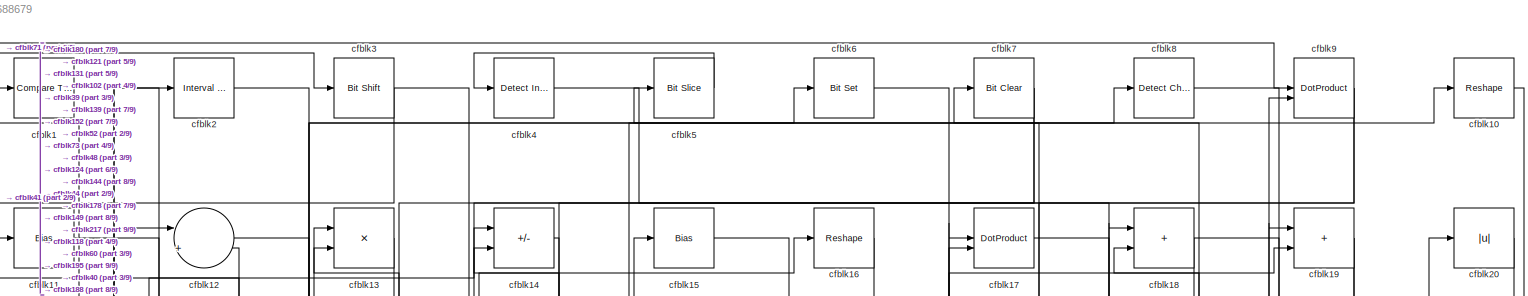
[diagram: root canvas - part 1/9, full width, top band]
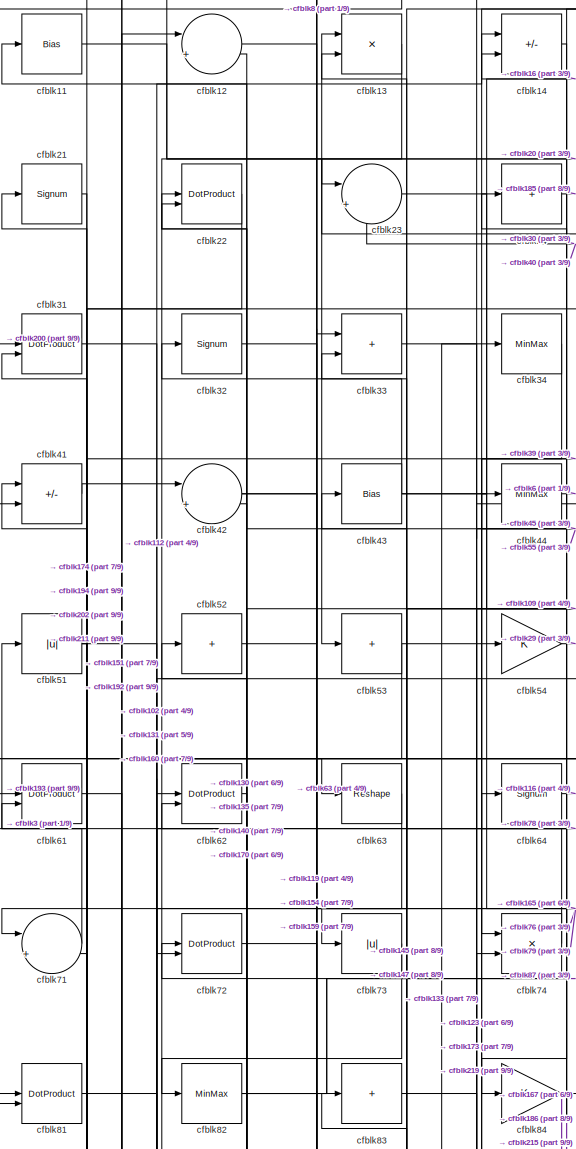
[diagram: root canvas - part 2/9, top left region]
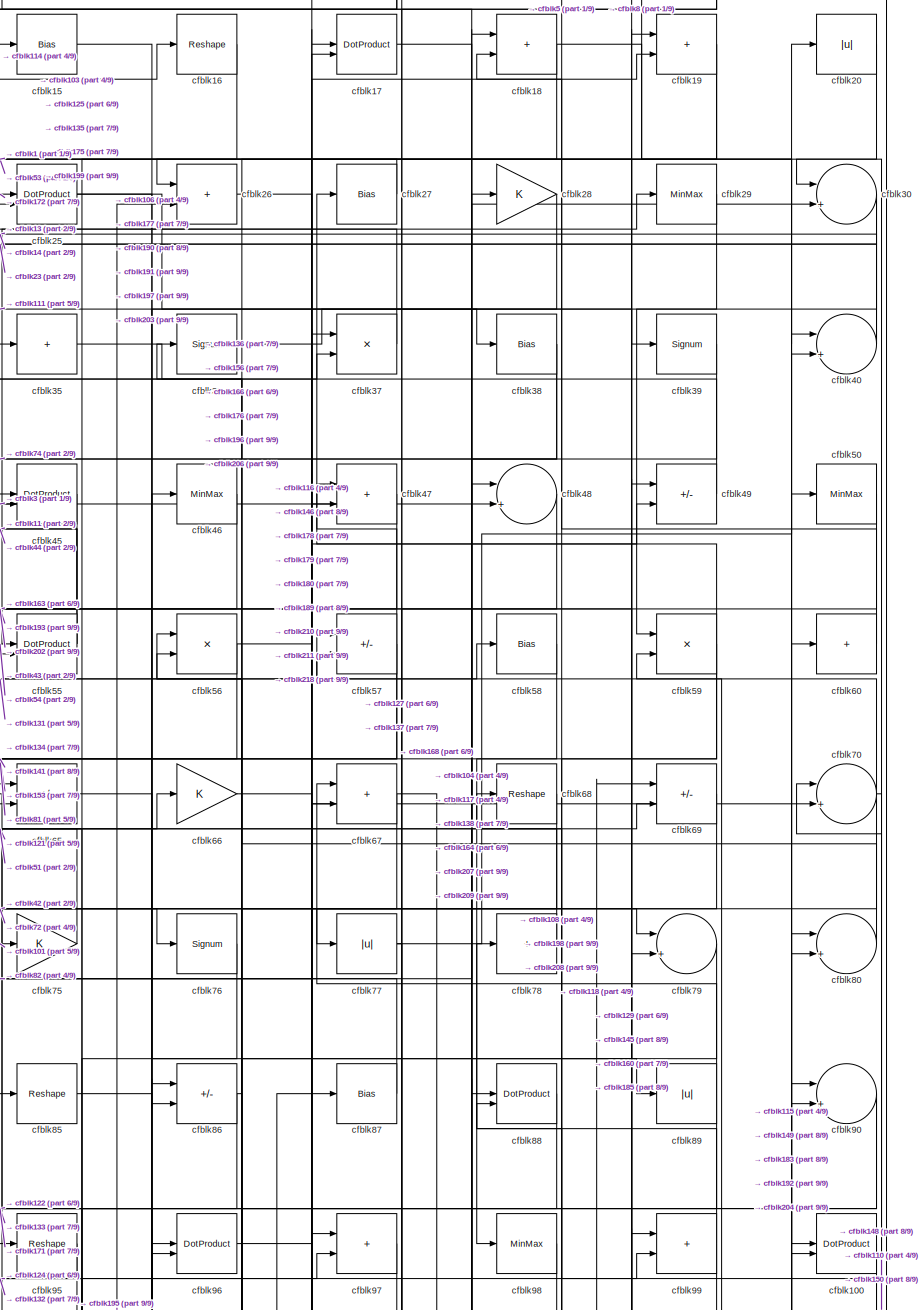
[diagram: root canvas - part 3/9, top right region]
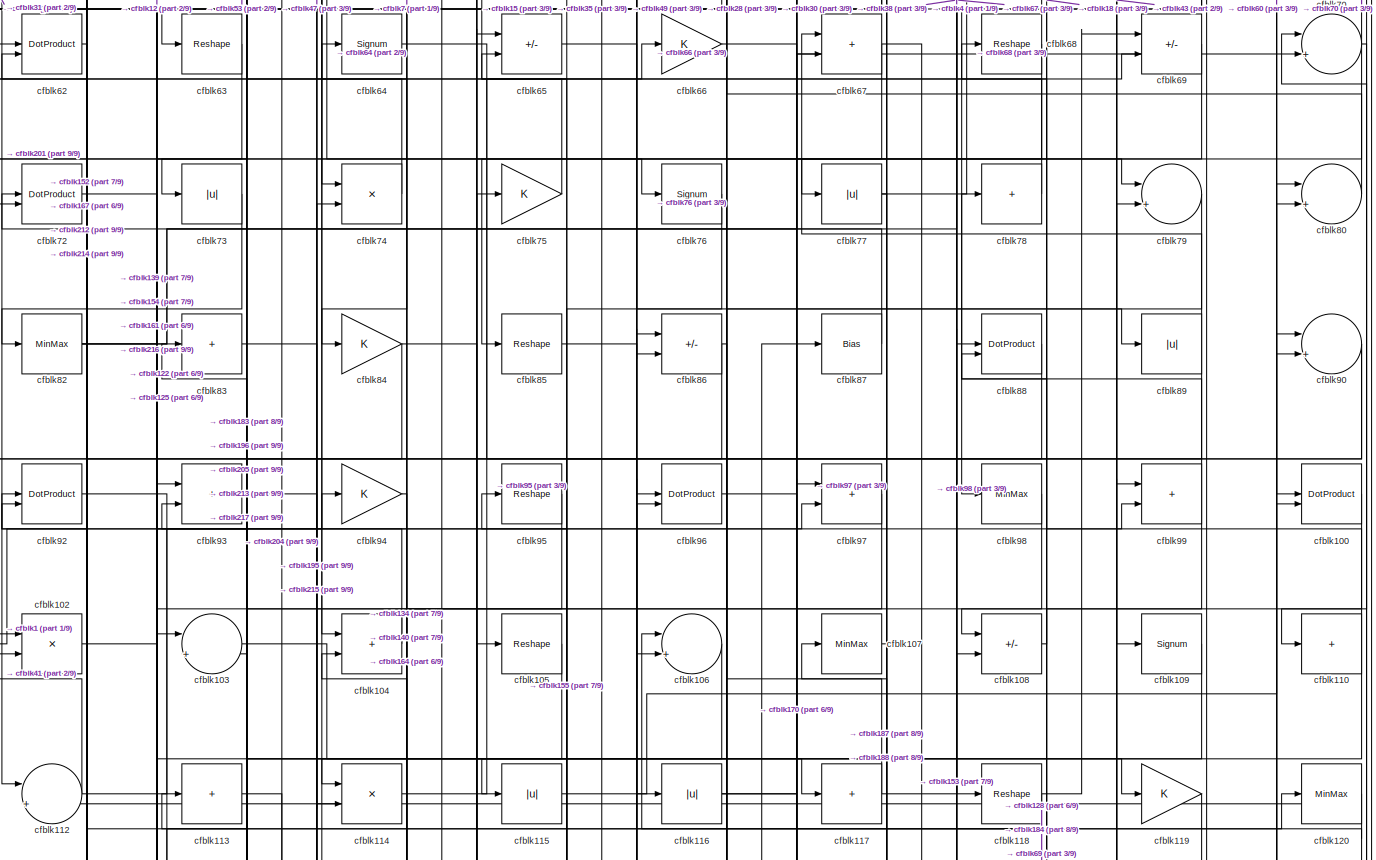
[diagram: root canvas - part 4/9, full width, middle band]
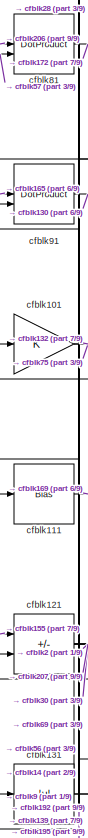
[diagram: root canvas - part 5/9, middle left region]
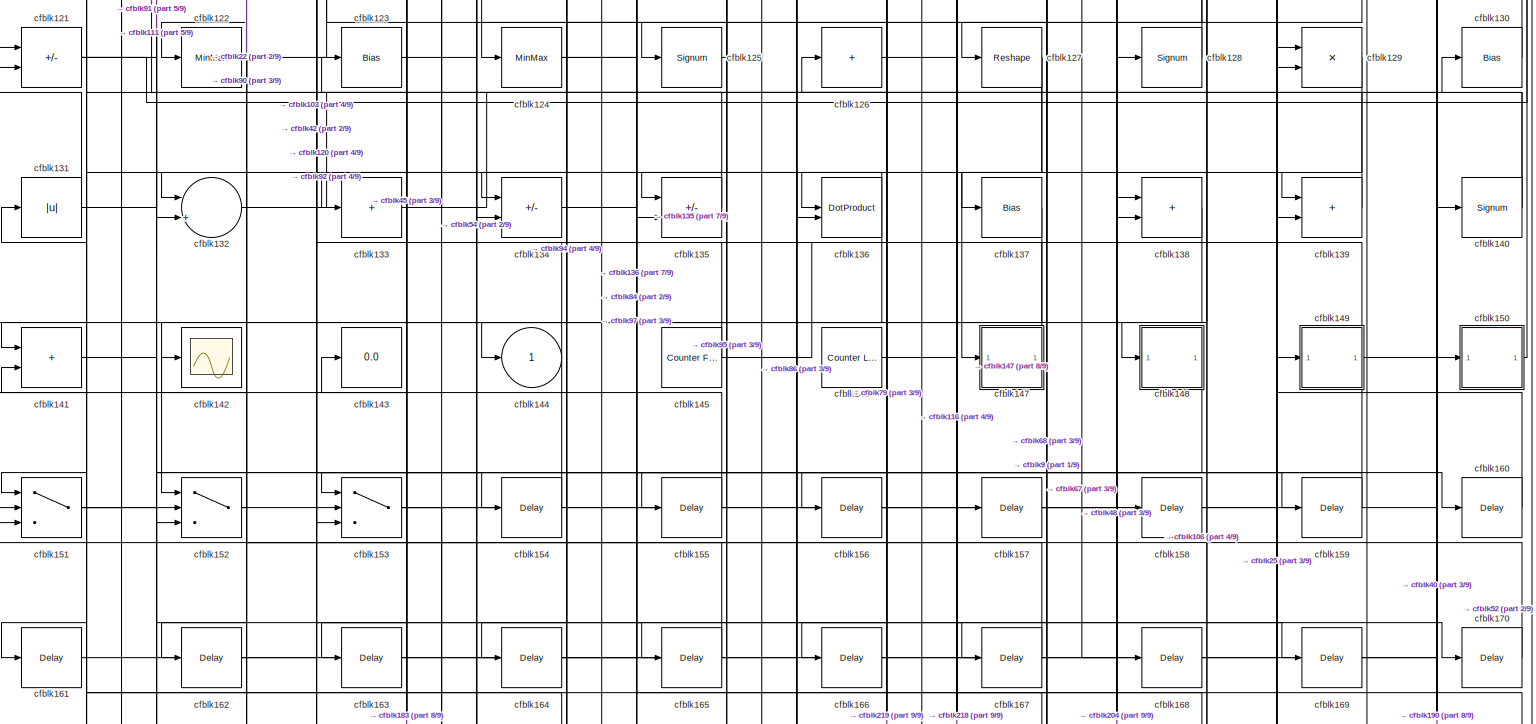
[diagram: root canvas - part 6/9, full width, middle band]
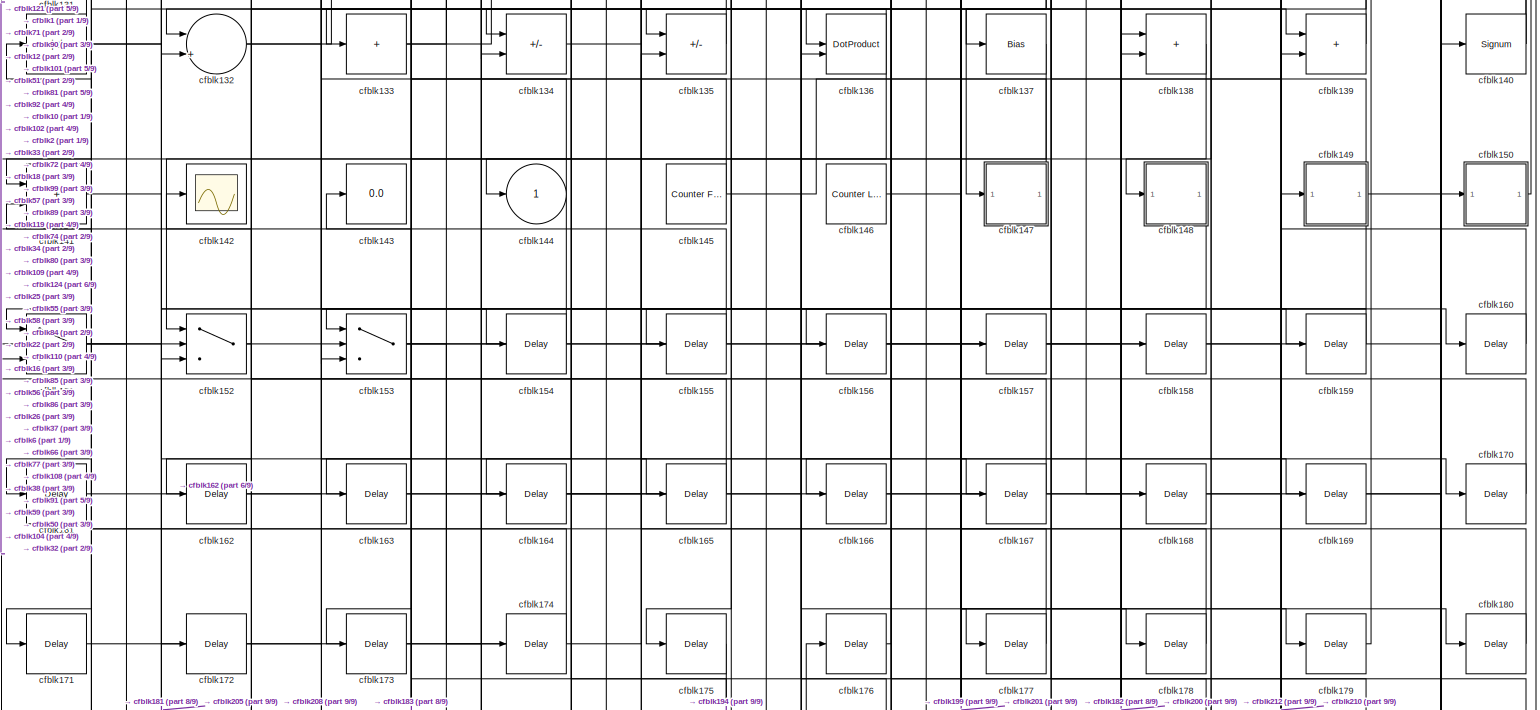
[diagram: root canvas - part 7/9, full width, bottom band]
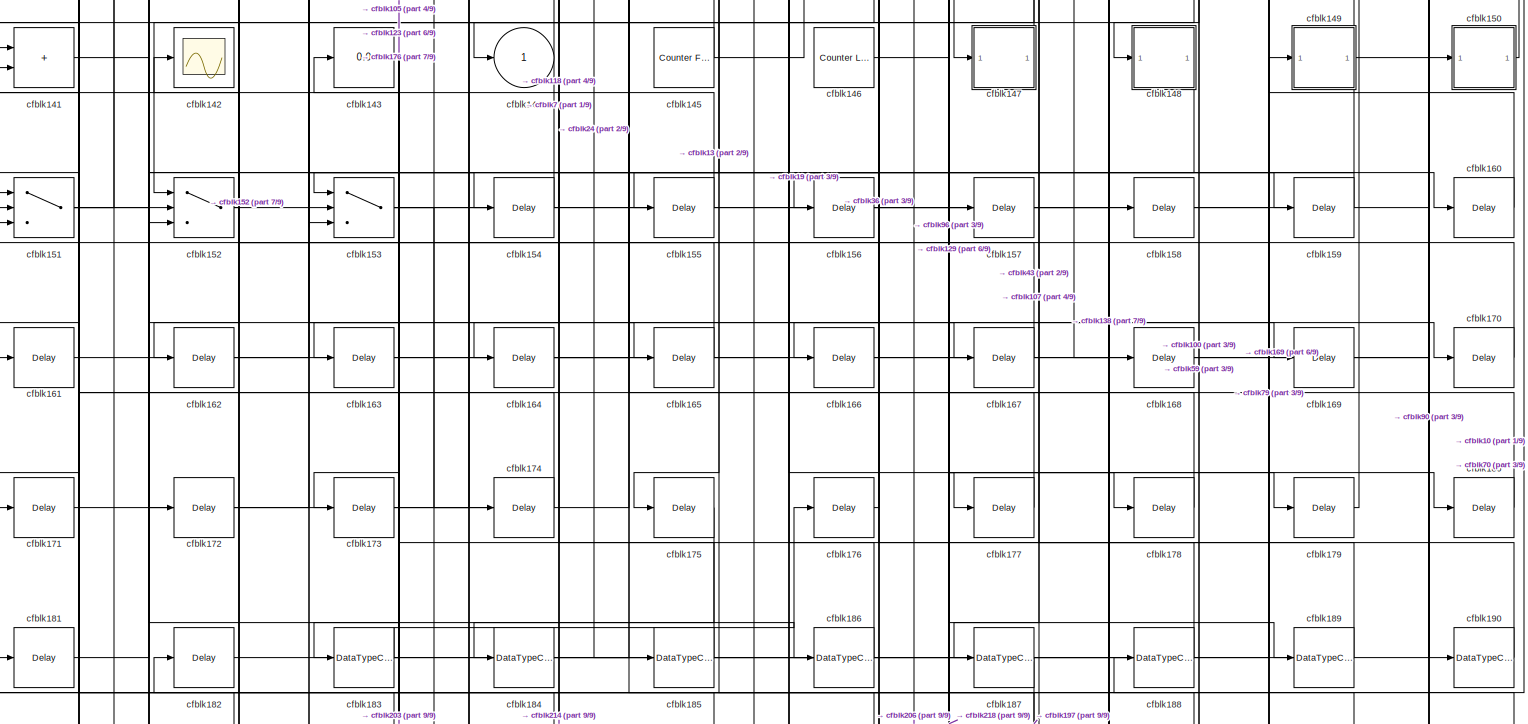
[diagram: root canvas - part 8/9, full width, bottom band]
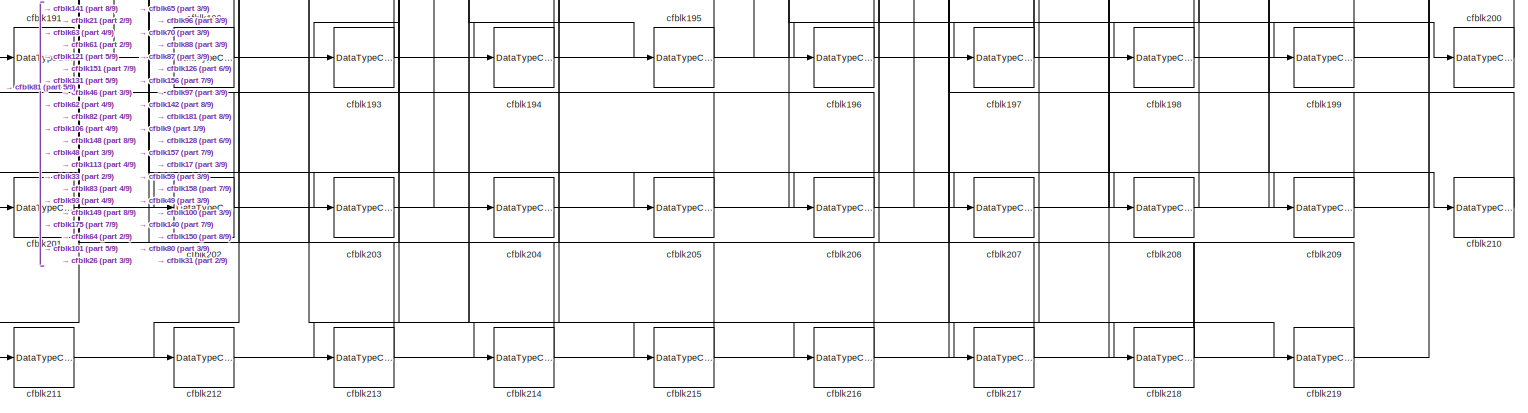
[diagram: root canvas - part 9/9, full width, bottom band]
MODEL slx_2b4362688679
KIND model
CONFIG AbsTol = auto
CONFIG EnableMultiTasking = off
CONFIG FixedStep = auto
CONFIG MaxStep = auto
CONFIG MinStep = auto
CONFIG RelTol = 1e-3
CONFIG SampleTimeConstraint = Unconstrained
CONFIG SolverName = VariableStepAuto
CONFIG StartTime = 0.0
CONFIG StopTime = 10.0
BLOCK [Reference] cfblk1  REF=hdlsllib/Logic and Bit
Operations/Compare
To Zero
  SourceBlock = hdlsllib/Logic and Bit\nOperations/Compare\nTo Zero
  SourceType = Compare To Zero
BLOCK [Reshape] cfblk10
BLOCK [DotProduct] cfblk100
  OutDataTypeStr = Inherit: Inherit via internal rule
BLOCK [Gain] cfblk101
BLOCK [Product] cfblk102
  Inputs = */
  RndMeth = Zero
  SaturateOnIntegerOverflow = on
BLOCK [Sum] cfblk103
  Inputs = |++
BLOCK [Sum] cfblk104
  IconShape = rectangular
BLOCK [Reshape] cfblk105
BLOCK [Sum] cfblk106
  Inputs = |++
BLOCK [MinMax] cfblk107
BLOCK [Sum] cfblk108
  IconShape = rectangular
  Inputs = +-
BLOCK [Signum] cfblk109
BLOCK [Bias] cfblk11
  Bias = 0.0
  SaturateOnIntegerOverflow = off
BLOCK [Sum] cfblk110
  IconShape = rectangular
  Inputs = +
BLOCK [Bias] cfblk111
  Bias = 0.0
  SaturateOnIntegerOverflow = off
BLOCK [Sum] cfblk112
  Inputs = |++
BLOCK [Sum] cfblk113
  IconShape = rectangular
  Inputs = +
BLOCK [Product] cfblk114
  Inputs = */
  RndMeth = Zero
  SaturateOnIntegerOverflow = on
BLOCK [Abs] cfblk115
  SaturateOnIntegerOverflow = off
BLOCK [Abs] cfblk116
  SaturateOnIntegerOverflow = off
BLOCK [Sum] cfblk117
  IconShape = rectangular
  Inputs = +
BLOCK [Reshape] cfblk118
BLOCK [Gain] cfblk119
BLOCK [Sum] cfblk12
  Inputs = |++
BLOCK [MinMax] cfblk120
BLOCK [Sum] cfblk121
  IconShape = rectangular
  Inputs = +-
BLOCK [MinMax] cfblk122
BLOCK [Bias] cfblk123
  Bias = 0.0
  SaturateOnIntegerOverflow = off
BLOCK [MinMax] cfblk124
BLOCK [Signum] cfblk125
BLOCK [Sum] cfblk126
  IconShape = rectangular
  Inputs = +
BLOCK [Reshape] cfblk127
BLOCK [Signum] cfblk128
BLOCK [Product] cfblk129
  Inputs = */
  RndMeth = Zero
  SaturateOnIntegerOverflow = on
BLOCK [Product] cfblk13
  Inputs = */
  RndMeth = Zero
  SaturateOnIntegerOverflow = on
BLOCK [Bias] cfblk130
  Bias = 0.0
  SaturateOnIntegerOverflow = off
BLOCK [Abs] cfblk131
  SaturateOnIntegerOverflow = off
BLOCK [Sum] cfblk132
  Inputs = |++
BLOCK [Sum] cfblk133
  IconShape = rectangular
  Inputs = +
BLOCK [Sum] cfblk134
  IconShape = rectangular
  Inputs = +-
BLOCK [Sum] cfblk135
  IconShape = rectangular
  Inputs = +-
BLOCK [DotProduct] cfblk136
  OutDataTypeStr = Inherit: Inherit via internal rule
BLOCK [Bias] cfblk137
  Bias = 0.0
  SaturateOnIntegerOverflow = off
BLOCK [Sum] cfblk138
  IconShape = rectangular
BLOCK [Sum] cfblk139
  IconShape = rectangular
BLOCK [Sum] cfblk14
  IconShape = rectangular
  Inputs = +-
BLOCK [Signum] cfblk140
BLOCK [Sum] cfblk141
  IconShape = rectangular
BLOCK [Scope] cfblk142
  Floating = off
  NumInputPorts = 1
  ScopeSpecificationString = Simulink.scopes.TimeScopeBlockCfg('CurrentConfiguration', extmgr.ConfigurationSet(extmgr.Configuration('Core','General UI',true),extmgr.Configuration('Core','Source UI',true),extmgr.Configuration('Sources','WiredSimulink',true,'DataLoggingVariableName','ScopeData2','DataLoggingSaveFormat','Array','DataLoggingLimitDataPoints',true,'DataLoggingDecimation','1'),extmgr.Configuration('Visuals','Time Do...<+868ch>
BLOCK [Display] cfblk143
  Decimation = 1
BLOCK [Outport] cfblk144
  VectorParamsAs1DForOutWhenUnconnected = off
BLOCK [Reference] cfblk145  REF=hdlsllib/Sources/Counter
Free-Running
  SourceBlock = hdlsllib/Sources/Counter\nFree-Running
  SourceType = Counter Free-Running
BLOCK [Reference] cfblk146  REF=hdlsllib/Sources/Counter
Limited
  SourceBlock = hdlsllib/Sources/Counter\nLimited
  SourceType = Counter Limited
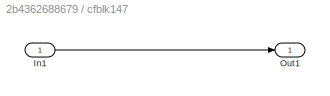
BLOCK [SubSystem] cfblk147
  LibrarySourceBlock = hdlsllib/Ports &\nSubsystems/Subsystem
BLOCK [Inport] cfblk147/In1
BLOCK [Outport] cfblk147/Out1
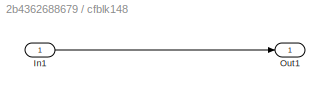
BLOCK [SubSystem] cfblk148
  LibrarySourceBlock = hdlsllib/Ports &\nSubsystems/Subsystem
BLOCK [Inport] cfblk148/In1
BLOCK [Outport] cfblk148/Out1
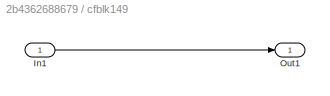
BLOCK [SubSystem] cfblk149
  LibrarySourceBlock = hdlsllib/Ports &\nSubsystems/Subsystem
BLOCK [Inport] cfblk149/In1
BLOCK [Outport] cfblk149/Out1
BLOCK [Bias] cfblk15
  Bias = 0.0
  SaturateOnIntegerOverflow = off
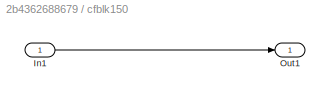
BLOCK [SubSystem] cfblk150
  LibrarySourceBlock = hdlsllib/Ports &\nSubsystems/Subsystem
BLOCK [Inport] cfblk150/In1
BLOCK [Outport] cfblk150/Out1
BLOCK [Switch] cfblk151
  InputSameDT = off
  SaturateOnIntegerOverflow = off
BLOCK [Switch] cfblk152
  InputSameDT = off
  SaturateOnIntegerOverflow = off
BLOCK [Switch] cfblk153
  InputSameDT = off
  SaturateOnIntegerOverflow = off
BLOCK [Delay] cfblk154
  InputPortMap = u0
  SampleTime = 1
BLOCK [Delay] cfblk155
  InputPortMap = u0
  SampleTime = 1
BLOCK [Delay] cfblk156
  InputPortMap = u0
  SampleTime = 1
BLOCK [Delay] cfblk157
  InputPortMap = u0
  SampleTime = 1
BLOCK [Delay] cfblk158
  InputPortMap = u0
  SampleTime = 1
BLOCK [Delay] cfblk159
  InputPortMap = u0
  SampleTime = 1
BLOCK [Reshape] cfblk16
BLOCK [Delay] cfblk160
  InputPortMap = u0
  SampleTime = 1
BLOCK [Delay] cfblk161
  InputPortMap = u0
  SampleTime = 1
BLOCK [Delay] cfblk162
  InputPortMap = u0
  SampleTime = 1
BLOCK [Delay] cfblk163
  InputPortMap = u0
  SampleTime = 1
BLOCK [Delay] cfblk164
  InputPortMap = u0
  SampleTime = 1
BLOCK [Delay] cfblk165
  InputPortMap = u0
  SampleTime = 1
BLOCK [Delay] cfblk166
  InputPortMap = u0
  SampleTime = 1
BLOCK [Delay] cfblk167
  InputPortMap = u0
  SampleTime = 1
BLOCK [Delay] cfblk168
  InputPortMap = u0
  SampleTime = 1
BLOCK [Delay] cfblk169
  InputPortMap = u0
  SampleTime = 1
BLOCK [DotProduct] cfblk17
  OutDataTypeStr = Inherit: Inherit via internal rule
BLOCK [Delay] cfblk170
  InputPortMap = u0
  SampleTime = 1
BLOCK [Delay] cfblk171
  InputPortMap = u0
  SampleTime = 1
BLOCK [Delay] cfblk172
  InputPortMap = u0
  SampleTime = 1
BLOCK [Delay] cfblk173
  InputPortMap = u0
  SampleTime = 1
BLOCK [Delay] cfblk174
  InputPortMap = u0
  SampleTime = 1
BLOCK [Delay] cfblk175
  InputPortMap = u0
  SampleTime = 1
BLOCK [Delay] cfblk176
  InputPortMap = u0
  SampleTime = 1
BLOCK [Delay] cfblk177
  InputPortMap = u0
  SampleTime = 1
BLOCK [Delay] cfblk178
  InputPortMap = u0
  SampleTime = 1
BLOCK [Delay] cfblk179
  InputPortMap = u0
  SampleTime = 1
BLOCK [Sum] cfblk18
  IconShape = rectangular
BLOCK [Delay] cfblk180
  InputPortMap = u0
  SampleTime = 1
BLOCK [Delay] cfblk181
  InputPortMap = u0
  SampleTime = 1
BLOCK [Delay] cfblk182
  InputPortMap = u0
  SampleTime = 1
BLOCK [DataTypeConversion] cfblk183
  RndMeth = Floor
  SaturateOnIntegerOverflow = off
BLOCK [DataTypeConversion] cfblk184
  OutDataTypeStr = uint8
  RndMeth = Floor
  SaturateOnIntegerOverflow = off
BLOCK [DataTypeConversion] cfblk185
  RndMeth = Floor
  SaturateOnIntegerOverflow = off
BLOCK [DataTypeConversion] cfblk186
  OutDataTypeStr = uint8
  RndMeth = Floor
  SaturateOnIntegerOverflow = off
BLOCK [DataTypeConversion] cfblk187
  OutDataTypeStr = uint8
  RndMeth = Floor
  SaturateOnIntegerOverflow = off
BLOCK [DataTypeConversion] cfblk188
  OutDataTypeStr = uint8
  RndMeth = Floor
  SaturateOnIntegerOverflow = off
BLOCK [DataTypeConversion] cfblk189
  OutDataTypeStr = uint8
  RndMeth = Floor
  SaturateOnIntegerOverflow = off
BLOCK [Sum] cfblk19
  IconShape = rectangular
BLOCK [DataTypeConversion] cfblk190
  OutDataTypeStr = uint8
  RndMeth = Floor
  SaturateOnIntegerOverflow = off
BLOCK [DataTypeConversion] cfblk191
  OutDataTypeStr = uint8
  RndMeth = Floor
  SaturateOnIntegerOverflow = off
BLOCK [DataTypeConversion] cfblk192
  RndMeth = Floor
  SaturateOnIntegerOverflow = off
BLOCK [DataTypeConversion] cfblk193
  OutDataTypeStr = uint8
  RndMeth = Floor
  SaturateOnIntegerOverflow = off
BLOCK [DataTypeConversion] cfblk194
  OutDataTypeStr = uint8
  RndMeth = Floor
  SaturateOnIntegerOverflow = off
BLOCK [DataTypeConversion] cfblk195
  RndMeth = Floor
  SaturateOnIntegerOverflow = off
BLOCK [DataTypeConversion] cfblk196
  OutDataTypeStr = uint8
  RndMeth = Floor
  SaturateOnIntegerOverflow = off
BLOCK [DataTypeConversion] cfblk197
  RndMeth = Floor
  SaturateOnIntegerOverflow = off
BLOCK [DataTypeConversion] cfblk198
  OutDataTypeStr = uint8
  RndMeth = Floor
  SaturateOnIntegerOverflow = off
BLOCK [DataTypeConversion] cfblk199
  OutDataTypeStr = uint8
  RndMeth = Floor
  SaturateOnIntegerOverflow = off
BLOCK [Reference] cfblk2  REF=hdlsllib/Logic and Bit
Operations/Interval Test
  SourceBlock = hdlsllib/Logic and Bit\nOperations/Interval Test
  SourceType = Interval Test
BLOCK [Abs] cfblk20
  SaturateOnIntegerOverflow = off
BLOCK [DataTypeConversion] cfblk200
  OutDataTypeStr = uint8
  RndMeth = Floor
  SaturateOnIntegerOverflow = off
BLOCK [DataTypeConversion] cfblk201
  OutDataTypeStr = uint8
  RndMeth = Floor
  SaturateOnIntegerOverflow = off
BLOCK [DataTypeConversion] cfblk202
  OutDataTypeStr = uint8
  RndMeth = Floor
  SaturateOnIntegerOverflow = off
BLOCK [DataTypeConversion] cfblk203
  OutDataTypeStr = uint8
  RndMeth = Floor
  SaturateOnIntegerOverflow = off
BLOCK [DataTypeConversion] cfblk204
  RndMeth = Floor
  SaturateOnIntegerOverflow = off
BLOCK [DataTypeConversion] cfblk205
  OutDataTypeStr = uint8
  RndMeth = Floor
  SaturateOnIntegerOverflow = off
BLOCK [DataTypeConversion] cfblk206
  RndMeth = Floor
  SaturateOnIntegerOverflow = off
BLOCK [DataTypeConversion] cfblk207
  OutDataTypeStr = uint8
  RndMeth = Floor
  SaturateOnIntegerOverflow = off
BLOCK [DataTypeConversion] cfblk208
  OutDataTypeStr = uint8
  RndMeth = Floor
  SaturateOnIntegerOverflow = off
BLOCK [DataTypeConversion] cfblk209
  OutDataTypeStr = uint8
  RndMeth = Floor
  SaturateOnIntegerOverflow = off
BLOCK [Signum] cfblk21
BLOCK [DataTypeConversion] cfblk210
  OutDataTypeStr = uint8
  RndMeth = Floor
  SaturateOnIntegerOverflow = off
BLOCK [DataTypeConversion] cfblk211
  OutDataTypeStr = uint8
  RndMeth = Floor
  SaturateOnIntegerOverflow = off
BLOCK [DataTypeConversion] cfblk212
  RndMeth = Floor
  SaturateOnIntegerOverflow = off
BLOCK [DataTypeConversion] cfblk213
  OutDataTypeStr = uint8
  RndMeth = Floor
  SaturateOnIntegerOverflow = off
BLOCK [DataTypeConversion] cfblk214
  OutDataTypeStr = uint8
  RndMeth = Floor
  SaturateOnIntegerOverflow = off
BLOCK [DataTypeConversion] cfblk215
  OutDataTypeStr = uint8
  RndMeth = Floor
  SaturateOnIntegerOverflow = off
BLOCK [DataTypeConversion] cfblk216
  OutDataTypeStr = uint8
  RndMeth = Floor
  SaturateOnIntegerOverflow = off
BLOCK [DataTypeConversion] cfblk217
  OutDataTypeStr = uint8
  RndMeth = Floor
  SaturateOnIntegerOverflow = off
BLOCK [DataTypeConversion] cfblk218
  RndMeth = Floor
  SaturateOnIntegerOverflow = off
BLOCK [DataTypeConversion] cfblk219
  OutDataTypeStr = uint8
  RndMeth = Floor
  SaturateOnIntegerOverflow = off
BLOCK [DotProduct] cfblk22
  OutDataTypeStr = Inherit: Inherit via internal rule
BLOCK [Sum] cfblk23
  Inputs = |++
BLOCK [Sum] cfblk24
  IconShape = rectangular
  Inputs = +
BLOCK [DotProduct] cfblk25
  OutDataTypeStr = Inherit: Inherit via internal rule
BLOCK [Sum] cfblk26
  IconShape = rectangular
BLOCK [Bias] cfblk27
  Bias = 0.0
  SaturateOnIntegerOverflow = off
BLOCK [Gain] cfblk28
BLOCK [MinMax] cfblk29
BLOCK [Reference] cfblk3  REF=hdlsllib/Logic and Bit
Operations/Bit Shift
  SourceBlock = hdlsllib/Logic and Bit\nOperations/Bit Shift
  SourceType = Bit Shift
BLOCK [Sum] cfblk30
  Inputs = |++
BLOCK [DotProduct] cfblk31
  OutDataTypeStr = Inherit: Inherit via internal rule
BLOCK [Signum] cfblk32
BLOCK [Sum] cfblk33
  IconShape = rectangular
BLOCK [MinMax] cfblk34
BLOCK [Sum] cfblk35
  IconShape = rectangular
  Inputs = +
BLOCK [Signum] cfblk36
BLOCK [Product] cfblk37
  Inputs = */
  RndMeth = Zero
  SaturateOnIntegerOverflow = on
BLOCK [Bias] cfblk38
  Bias = 0.0
  SaturateOnIntegerOverflow = off
BLOCK [Signum] cfblk39
BLOCK [Reference] cfblk4  REF=simulink/Logic and Bit
Operations/Detect
Increase
  LibrarySourceBlock = hdlsllib/Logic and Bit\nOperations/Detect\nIncrease
  SourceBlock = simulink/Logic and Bit\nOperations/Detect\nIncrease
  SourceType = Detect Increase
BLOCK [Sum] cfblk40
  Inputs = |++
BLOCK [Sum] cfblk41
  IconShape = rectangular
  Inputs = +-
BLOCK [Sum] cfblk42
  Inputs = |++
BLOCK [Bias] cfblk43
  Bias = 0.0
  SaturateOnIntegerOverflow = off
BLOCK [MinMax] cfblk44
BLOCK [DotProduct] cfblk45
  OutDataTypeStr = Inherit: Inherit via internal rule
BLOCK [MinMax] cfblk46
BLOCK [Sum] cfblk47
  IconShape = rectangular
BLOCK [Sum] cfblk48
  Inputs = |++
BLOCK [Sum] cfblk49
  IconShape = rectangular
  Inputs = +-
BLOCK [Reference] cfblk5  REF=hdlsllib/Logic and Bit
Operations/Bit Slice
  SourceBlock = hdlsllib/Logic and Bit\nOperations/Bit Slice
  SourceType = Bit Slice
BLOCK [MinMax] cfblk50
BLOCK [Abs] cfblk51
  SaturateOnIntegerOverflow = off
BLOCK [Sum] cfblk52
  IconShape = rectangular
  Inputs = +
BLOCK [Sum] cfblk53
  IconShape = rectangular
  Inputs = +
BLOCK [Gain] cfblk54
BLOCK [DotProduct] cfblk55
  OutDataTypeStr = Inherit: Inherit via internal rule
BLOCK [Product] cfblk56
  Inputs = */
  RndMeth = Zero
  SaturateOnIntegerOverflow = on
BLOCK [Sum] cfblk57
  IconShape = rectangular
  Inputs = +-
BLOCK [Bias] cfblk58
  Bias = 0.0
  SaturateOnIntegerOverflow = off
BLOCK [Product] cfblk59
  Inputs = */
  RndMeth = Zero
  SaturateOnIntegerOverflow = on
BLOCK [Reference] cfblk6  REF=simulink/Logic and Bit
Operations/Bit Set
  LibrarySourceBlock = hdlsllib/Logic and Bit\nOperations/Bit Set
  SourceBlock = simulink/Logic and Bit\nOperations/Bit Set
  SourceType = Bit Set
BLOCK [Sum] cfblk60
  IconShape = rectangular
  Inputs = +
BLOCK [DotProduct] cfblk61
  OutDataTypeStr = Inherit: Inherit via internal rule
BLOCK [DotProduct] cfblk62
  OutDataTypeStr = Inherit: Inherit via internal rule
BLOCK [Reshape] cfblk63
BLOCK [Signum] cfblk64
BLOCK [Sum] cfblk65
  IconShape = rectangular
  Inputs = +-
BLOCK [Gain] cfblk66
BLOCK [Sum] cfblk67
  IconShape = rectangular
BLOCK [Reshape] cfblk68
BLOCK [Sum] cfblk69
  IconShape = rectangular
  Inputs = +-
BLOCK [Reference] cfblk7  REF=simulink/Logic and Bit
Operations/Bit Clear
  LibrarySourceBlock = hdlsllib/Logic and Bit\nOperations/Bit Clear
  SourceBlock = simulink/Logic and Bit\nOperations/Bit Clear
  SourceType = Bit Clear
BLOCK [Sum] cfblk70
  Inputs = |++
BLOCK [Sum] cfblk71
  Inputs = |++
BLOCK [DotProduct] cfblk72
  OutDataTypeStr = Inherit: Inherit via internal rule
BLOCK [Abs] cfblk73
  SaturateOnIntegerOverflow = off
BLOCK [Product] cfblk74
  Inputs = */
  RndMeth = Zero
  SaturateOnIntegerOverflow = on
BLOCK [Gain] cfblk75
BLOCK [Signum] cfblk76
BLOCK [Abs] cfblk77
  SaturateOnIntegerOverflow = off
BLOCK [Sum] cfblk78
  IconShape = rectangular
  Inputs = +
BLOCK [Sum] cfblk79
  Inputs = |++
BLOCK [Reference] cfblk8  REF=simulink/Logic and Bit
Operations/Detect
Change
  LibrarySourceBlock = hdlsllib/Logic and Bit\nOperations/Detect\nChange
  SourceBlock = simulink/Logic and Bit\nOperations/Detect\nChange
  SourceType = Detect Change
BLOCK [Sum] cfblk80
  Inputs = |++
BLOCK [DotProduct] cfblk81
  OutDataTypeStr = Inherit: Inherit via internal rule
BLOCK [MinMax] cfblk82
BLOCK [Sum] cfblk83
  IconShape = rectangular
  Inputs = +
BLOCK [Gain] cfblk84
BLOCK [Reshape] cfblk85
BLOCK [Sum] cfblk86
  IconShape = rectangular
  Inputs = +-
BLOCK [Bias] cfblk87
  Bias = 0.0
  SaturateOnIntegerOverflow = off
BLOCK [DotProduct] cfblk88
  OutDataTypeStr = Inherit: Inherit via internal rule
BLOCK [Abs] cfblk89
  SaturateOnIntegerOverflow = off
BLOCK [DotProduct] cfblk9
  OutDataTypeStr = Inherit: Inherit via internal rule
BLOCK [Sum] cfblk90
  Inputs = |++
BLOCK [DotProduct] cfblk91
  OutDataTypeStr = Inherit: Inherit via internal rule
BLOCK [DotProduct] cfblk92
  OutDataTypeStr = Inherit: Inherit via internal rule
BLOCK [Sum] cfblk93
  IconShape = rectangular
BLOCK [Gain] cfblk94
BLOCK [Reshape] cfblk95
BLOCK [DotProduct] cfblk96
  OutDataTypeStr = Inherit: Inherit via internal rule
BLOCK [Sum] cfblk97
  IconShape = rectangular
BLOCK [MinMax] cfblk98
BLOCK [Sum] cfblk99
  IconShape = rectangular
LINE cfblk100:1 -> cfblk148:1
NET cfblk101:1 -> cfblk132:2, cfblk75:1
LINE cfblk102:1 -> cfblk139:2
LINE cfblk103:1 -> cfblk117:1
LINE cfblk104:1 -> cfblk72:1
LINE cfblk105:1 -> cfblk183:1
LINE cfblk106:1 -> cfblk213:1
LINE cfblk107:1 -> cfblk187:1
LINE cfblk108:1 -> cfblk68:1
LINE cfblk109:1 -> cfblk134:1
LINE cfblk10:1 -> cfblk188:1
NET cfblk110:1 -> cfblk155:1, cfblk18:2
LINE cfblk111:1 -> cfblk169:1
NET cfblk112:1 -> cfblk41:1, cfblk94:1
LINE cfblk113:1 -> cfblk204:1
LINE cfblk114:1 -> cfblk66:1
LINE cfblk115:1 -> cfblk60:1
NET cfblk116:1 -> cfblk170:1, cfblk49:2
NET cfblk117:1 -> cfblk30:2, cfblk35:1
NET cfblk118:1 -> cfblk184:1, cfblk69:1
LINE cfblk119:1 -> cfblk134:2
LINE cfblk11:1 -> cfblk23:1
LINE cfblk120:1 -> cfblk112:2
NET cfblk121:1 -> cfblk207:1, cfblk2:1, cfblk30:1, cfblk69:2
LINE cfblk122:1 -> cfblk120:1
LINE cfblk123:1 -> cfblk54:1
NET cfblk124:1 -> cfblk136:2, cfblk97:2
LINE cfblk125:1 -> cfblk95:1
LINE cfblk126:1 -> cfblk218:1
NET cfblk127:1 -> cfblk161:1, cfblk162:1
LINE cfblk128:1 -> cfblk106:1
LINE cfblk129:1 -> cfblk147:1
LINE cfblk12:1 -> cfblk119:1
LINE cfblk130:1 -> cfblk52:1
NET cfblk131:1 -> cfblk14:2, cfblk57:2, cfblk9:1
NET cfblk132:1 -> cfblk18:1, cfblk99:2
NET cfblk133:1 -> cfblk34:1, cfblk80:1
LINE cfblk134:1 -> cfblk58:1
LINE cfblk135:1 -> cfblk22:1
NET cfblk136:1 -> cfblk132:1, cfblk151:2
LINE cfblk137:1 -> cfblk173:1
LINE cfblk138:1 -> cfblk152:1
LINE cfblk139:1 -> cfblk91:2
LINE cfblk13:1 -> cfblk112:1
NET cfblk140:1 -> cfblk104:2, cfblk32:1
LINE cfblk141:1 -> cfblk186:1
NET cfblk145:1 -> cfblk13:2, cfblk19:1
LINE cfblk146:1 -> cfblk70:2
LINE cfblk147/In1:1 -> cfblk147/Out1:1
LINE cfblk147:1 -> cfblk43:1
LINE cfblk148/In1:1 -> cfblk148/Out1:1
LINE cfblk148:1 -> cfblk203:1
LINE cfblk149/In1:1 -> cfblk149/Out1:1
NET cfblk149:1 -> cfblk214:1, cfblk7:1, cfblk90:2
LINE cfblk14:1 -> cfblk84:1
LINE cfblk150/In1:1 -> cfblk150/Out1:1
LINE cfblk150:1 -> cfblk70:1
NET cfblk151:1 -> cfblk12:1, cfblk205:1, cfblk208:1
NET cfblk152:1 -> cfblk10:1, cfblk92:1
NET cfblk153:1 -> cfblk108:2, cfblk174:1, cfblk50:1
LINE cfblk154:1 -> cfblk33:1
LINE cfblk155:1 -> cfblk121:1
LINE cfblk156:1 -> cfblk199:1
LINE cfblk157:1 -> cfblk200:1
LINE cfblk158:1 -> cfblk210:1
LINE cfblk159:1 -> cfblk152:2
LINE cfblk15:1 -> cfblk106:2
LINE cfblk160:1 -> cfblk99:1
LINE cfblk161:1 -> cfblk103:1
LINE cfblk162:1 -> cfblk135:2
LINE cfblk163:1 -> cfblk86:1
LINE cfblk164:1 -> cfblk48:1
LINE cfblk165:1 -> cfblk91:1
LINE cfblk166:1 -> cfblk40:2
LINE cfblk167:1 -> cfblk92:2
LINE cfblk168:1 -> cfblk129:1
LINE cfblk169:1 -> cfblk190:1
LINE cfblk16:1 -> cfblk135:1
LINE cfblk170:1 -> cfblk22:2
LINE cfblk171:1 -> cfblk153:2
LINE cfblk172:1 -> cfblk25:1
LINE cfblk173:1 -> cfblk74:2
LINE cfblk174:1 -> cfblk71:2
LINE cfblk175:1 -> cfblk194:1
LINE cfblk176:1 -> cfblk56:2
LINE cfblk177:1 -> cfblk55:1
LINE cfblk178:1 -> cfblk37:1
LINE cfblk179:1 -> cfblk59:2
LINE cfblk17:1 -> cfblk209:1
LINE cfblk180:1 -> cfblk1:1
LINE cfblk181:1 -> cfblk152:3
LINE cfblk182:1 -> cfblk138:1
NET cfblk183:1 -> cfblk123:1, cfblk176:1, cfblk90:1
LINE cfblk184:1 -> cfblk105:1
NET cfblk185:1 -> cfblk143:1, cfblk79:2
LINE cfblk186:1 -> cfblk24:1
LINE cfblk187:1 -> cfblk182:1
LINE cfblk188:1 -> cfblk107:1
LINE cfblk189:1 -> cfblk36:1
NET cfblk18:1 -> cfblk100:1, cfblk156:1
LINE cfblk190:1 -> cfblk96:1
LINE cfblk191:1 -> cfblk96:2
NET cfblk192:1 -> cfblk131:1, cfblk80:2
LINE cfblk193:1 -> cfblk61:1
LINE cfblk194:1 -> cfblk61:2
NET cfblk195:1 -> cfblk101:1, cfblk26:2, cfblk9:2
LINE cfblk196:1 -> cfblk83:1
NET cfblk197:1 -> cfblk142:1, cfblk150:1, cfblk181:1
LINE cfblk198:1 -> cfblk65:1
LINE cfblk199:1 -> cfblk65:2
NET cfblk19:1 -> cfblk45:2, cfblk47:2
NET cfblk1:1 -> cfblk102:1, cfblk39:1
LINE cfblk200:1 -> cfblk31:1
LINE cfblk201:1 -> cfblk157:1
LINE cfblk202:1 -> cfblk31:2
LINE cfblk203:1 -> cfblk46:1
NET cfblk204:1 -> cfblk100:2, cfblk128:1
LINE cfblk205:1 -> cfblk113:1
NET cfblk206:1 -> cfblk149:1, cfblk81:1, cfblk87:1
LINE cfblk207:1 -> cfblk88:1
LINE cfblk208:1 -> cfblk88:2
LINE cfblk209:1 -> cfblk49:1
LINE cfblk20:1 -> cfblk53:1
LINE cfblk210:1 -> cfblk17:1
LINE cfblk211:1 -> cfblk17:2
NET cfblk212:1 -> cfblk140:1, cfblk158:1
LINE cfblk213:1 -> cfblk62:1
LINE cfblk214:1 -> cfblk62:2
LINE cfblk215:1 -> cfblk64:1
LINE cfblk216:1 -> cfblk93:1
LINE cfblk217:1 -> cfblk93:2
NET cfblk218:1 -> cfblk141:2, cfblk191:1, cfblk97:1
LINE cfblk219:1 -> cfblk126:1
LINE cfblk21:1 -> cfblk211:1
LINE cfblk22:1 -> cfblk71:1
LINE cfblk23:1 -> cfblk76:1
LINE cfblk24:1 -> cfblk185:1
NET cfblk25:1 -> cfblk129:2, cfblk89:1
LINE cfblk26:1 -> cfblk179:1
LINE cfblk27:1 -> cfblk26:1
LINE cfblk28:1 -> cfblk111:1
LINE cfblk29:1 -> cfblk86:2
LINE cfblk2:1 -> cfblk139:1
NET cfblk30:1 -> cfblk23:2, cfblk59:1
LINE cfblk31:1 -> cfblk63:1
LINE cfblk32:1 -> cfblk159:1
LINE cfblk33:1 -> cfblk219:1
LINE cfblk34:1 -> cfblk151:1
LINE cfblk35:1 -> cfblk37:2
LINE cfblk36:1 -> cfblk38:1
LINE cfblk37:1 -> cfblk25:2
NET cfblk38:1 -> cfblk104:1, cfblk138:2
LINE cfblk39:1 -> cfblk74:1
NET cfblk3:1 -> cfblk41:2, cfblk48:2
NET cfblk40:1 -> cfblk13:1, cfblk14:1
LINE cfblk41:1 -> cfblk42:1
NET cfblk42:1 -> cfblk165:1, cfblk79:1
NET cfblk43:1 -> cfblk109:1, cfblk12:2, cfblk16:1
LINE cfblk44:1 -> cfblk6:1
LINE cfblk45:1 -> cfblk163:1
LINE cfblk46:1 -> cfblk202:1
LINE cfblk47:1 -> cfblk114:2
LINE cfblk48:1 -> cfblk193:1
LINE cfblk49:1 -> cfblk15:1
LINE cfblk4:1 -> cfblk118:1
LINE cfblk50:1 -> cfblk77:1
NET cfblk51:1 -> cfblk160:1, cfblk21:1
LINE cfblk52:1 -> cfblk8:1
NET cfblk53:1 -> cfblk102:2, cfblk45:1
LINE cfblk54:1 -> cfblk29:1
NET cfblk55:1 -> cfblk11:1, cfblk44:1
NET cfblk56:1 -> cfblk121:2, cfblk19:2
NET cfblk57:1 -> cfblk153:1, cfblk27:1, cfblk81:2
LINE cfblk58:1 -> cfblk98:1
NET cfblk59:1 -> cfblk141:1, cfblk198:1, cfblk47:1
LINE cfblk5:1 -> cfblk4:1
LINE cfblk60:1 -> cfblk5:1
LINE cfblk61:1 -> cfblk192:1
LINE cfblk62:1 -> cfblk212:1
LINE cfblk63:1 -> cfblk201:1
LINE cfblk64:1 -> cfblk116:1
LINE cfblk65:1 -> cfblk197:1
LINE cfblk66:1 -> cfblk180:1
NET cfblk67:1 -> cfblk168:1, cfblk72:2
LINE cfblk68:1 -> cfblk127:1
LINE cfblk69:1 -> cfblk85:1
LINE cfblk6:1 -> cfblk178:1
NET cfblk70:1 -> cfblk110:1, cfblk196:1, cfblk57:1
LINE cfblk71:1 -> cfblk3:1
LINE cfblk72:1 -> cfblk154:1
LINE cfblk73:1 -> cfblk82:1
LINE cfblk74:1 -> cfblk33:2
LINE cfblk75:1 -> cfblk55:2
LINE cfblk76:1 -> cfblk115:1
NET cfblk77:1 -> cfblk137:1, cfblk20:1
LINE cfblk78:1 -> cfblk51:1
LINE cfblk79:1 -> cfblk166:1
NET cfblk7:1 -> cfblk144:1, cfblk73:1
LINE cfblk80:1 -> cfblk56:1
LINE cfblk81:1 -> cfblk172:1
NET cfblk82:1 -> cfblk216:1, cfblk28:1, cfblk67:2
LINE cfblk83:1 -> cfblk195:1
NET cfblk84:1 -> cfblk151:3, cfblk167:1
LINE cfblk85:1 -> cfblk177:1
NET cfblk86:1 -> cfblk136:1, cfblk175:1
LINE cfblk87:1 -> cfblk42:2
LINE cfblk88:1 -> cfblk206:1
NET cfblk89:1 -> cfblk133:1, cfblk67:1
LINE cfblk8:1 -> cfblk40:1
NET cfblk90:1 -> cfblk122:1, cfblk171:1
LINE cfblk91:1 -> cfblk130:1
LINE cfblk92:1 -> cfblk125:1
LINE cfblk93:1 -> cfblk215:1
LINE cfblk94:1 -> cfblk164:1
LINE cfblk95:1 -> cfblk103:2
LINE cfblk96:1 -> cfblk189:1
LINE cfblk97:1 -> cfblk114:1
LINE cfblk98:1 -> cfblk108:1
NET cfblk99:1 -> cfblk153:3, cfblk78:1
NET cfblk9:1 -> cfblk124:1, cfblk217:1
note: NET lines group one-source signal fan-out (src -> all destinations, sorted); 1:1 wires keep LINE
